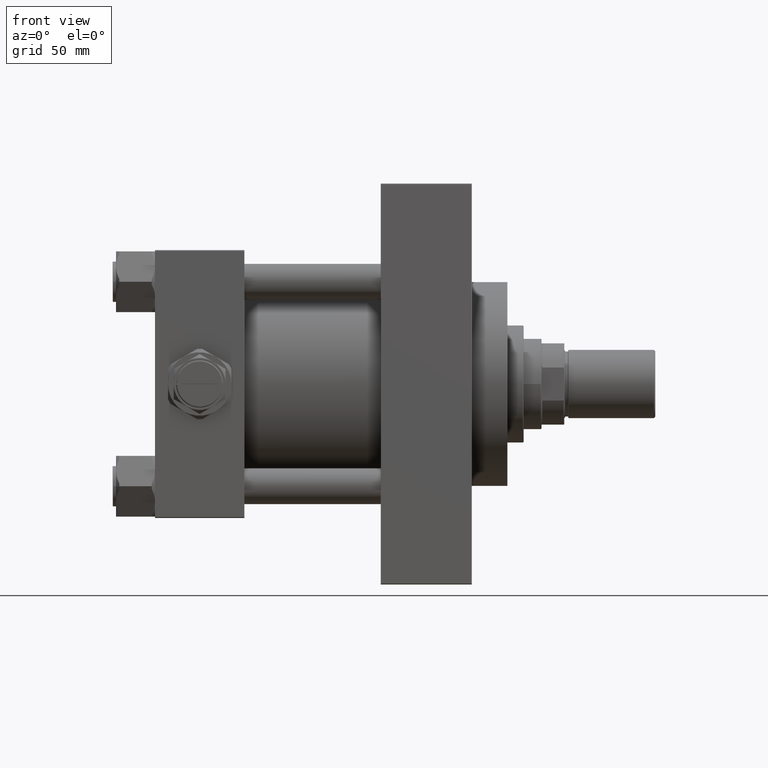
[diagram: clean part render]
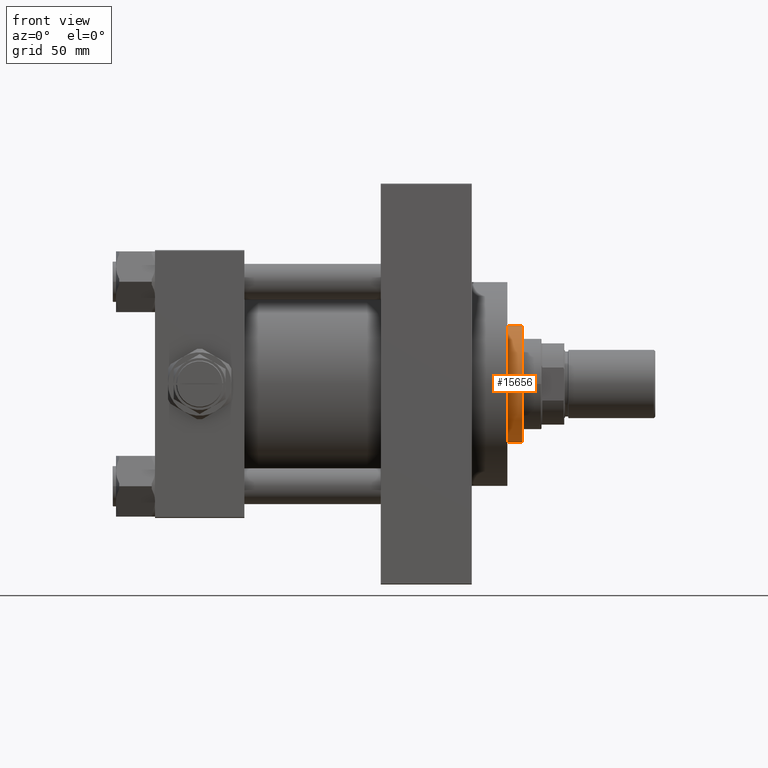
[diagram: same view with one face highlighted and labeled with its STEP entity id]
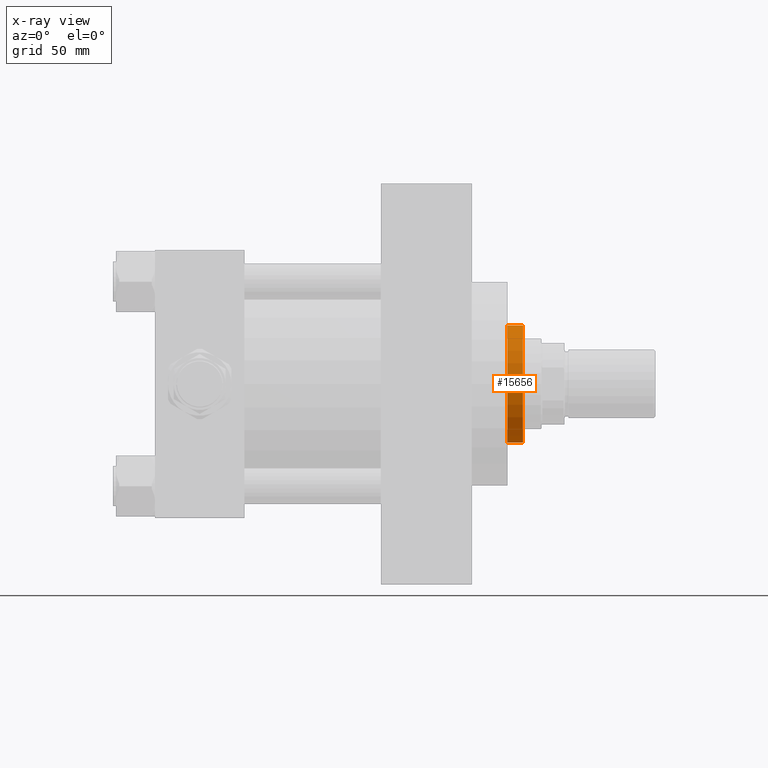
[diagram: x-ray of the same camera — body ghosted, the highlighted face saturated]
A machine part, front view. The second image highlights one B-rep face of the part: STEP entity #15656.
The next image is the same camera in x-ray: the body ghosted, the highlighted face saturated — about 0% of this face is hidden behind the body in this view.
In plain terms, the highlighted cylindrical surface (partial cylindrical patch) has radius 36 mm, axis along (-1, 0, 0).
Its self-contained STEP definition (entity closure, byte-faithful):
#505 = CIRCLE ( 'NONE', #12582, 36.00000000000000000 ) ;
#1397 = CARTESIAN_POINT ( 'NONE',  ( 0.000000000000000000, 0.000000000000000000, 52.75999999999999091 ) ) ;
#2450 = VERTEX_POINT ( 'NONE', #28336 ) ;
#5714 = VERTEX_POINT ( 'NONE', #18054 ) ;
#5860 = AXIS2_PLACEMENT_3D ( 'NONE', #26989, #38361, #15102 ) ;
#7279 = CYLINDRICAL_SURFACE ( 'NONE', #5860, 36.00000000000000000 ) ;
#9588 = DIRECTION ( 'NONE',  ( -0.000000000000000000, -0.000000000000000000, -1.000000000000000000 ) ) ;
#10615 = VECTOR ( 'NONE', #34132, 1000.000000000000000 ) ;
#12582 = AXIS2_PLACEMENT_3D ( 'NONE', #1397, #36008, #47129 ) ;
#12704 = DIRECTION ( 'NONE',  ( 0.000000000000000000, 0.000000000000000000, 1.000000000000000000 ) ) ;
#12755 = EDGE_CURVE ( 'NONE', #2450, #38044, #37678, .T. ) ;
#15102 = DIRECTION ( 'NONE',  ( -1.000000000000000000, 0.000000000000000000, 0.000000000000000000 ) ) ;
#15407 = CIRCLE ( 'NONE', #17807, 36.00000000000000000 ) ;
#15656 = ADVANCED_FACE ( 'NONE', ( #41888 ), #7279, .T. ) ;
#15780 = VECTOR ( 'NONE', #9588, 1000.000000000000000 ) ;
#17807 = AXIS2_PLACEMENT_3D ( 'NONE', #26694, #12704, #47317 ) ;
#18054 = CARTESIAN_POINT ( 'NONE',  ( -36.00000000000000000, 0.000000000000000000, 43.25999999999999801 ) ) ;
#19062 = EDGE_LOOP ( 'NONE', ( #43938, #49003, #48253, #32353 ) ) ;
#20968 = VERTEX_POINT ( 'NONE', #41719 ) ;
#24747 = LINE ( 'NONE', #40164, #15780 ) ;
#25428 = EDGE_CURVE ( 'NONE', #20968, #5714, #24747, .T. ) ;
#26694 = CARTESIAN_POINT ( 'NONE',  ( 0.000000000000000000, 0.000000000000000000, 43.25999999999999801 ) ) ;
#26989 = CARTESIAN_POINT ( 'NONE',  ( 0.000000000000000000, 0.000000000000000000, 53.26000000000000512 ) ) ;
#27010 = EDGE_CURVE ( 'NONE', #20968, #2450, #505, .T. ) ;
#28336 = CARTESIAN_POINT ( 'NONE',  ( 36.00000000000000000, 4.408728476930470856E-15, 52.75999999999999091 ) ) ;
#32353 = ORIENTED_EDGE ( 'NONE', *, *, #25428, .F. ) ;
#33887 = CARTESIAN_POINT ( 'NONE',  ( 36.00000000000000000, 4.408728476930470856E-15, 53.26000000000000512 ) ) ;
#34132 = DIRECTION ( 'NONE',  ( -0.000000000000000000, -0.000000000000000000, -1.000000000000000000 ) ) ;
#36008 = DIRECTION ( 'NONE',  ( 0.000000000000000000, 0.000000000000000000, -1.000000000000000000 ) ) ;
#37678 = LINE ( 'NONE', #33887, #10615 ) ;
#38044 = VERTEX_POINT ( 'NONE', #46074 ) ;
#38361 = DIRECTION ( 'NONE',  ( -0.000000000000000000, -0.000000000000000000, -1.000000000000000000 ) ) ;
#40164 = CARTESIAN_POINT ( 'NONE',  ( -36.00000000000000000, 0.000000000000000000, 53.26000000000000512 ) ) ;
#41719 = CARTESIAN_POINT ( 'NONE',  ( -36.00000000000000000, 0.000000000000000000, 52.75999999999999091 ) ) ;
#41803 = EDGE_CURVE ( 'NONE', #38044, #5714, #15407, .T. ) ;
#41888 = FACE_OUTER_BOUND ( 'NONE', #19062, .T. ) ;
#43938 = ORIENTED_EDGE ( 'NONE', *, *, #27010, .T. ) ;
#46074 = CARTESIAN_POINT ( 'NONE',  ( 36.00000000000000000, 4.408728476930470856E-15, 43.25999999999999801 ) ) ;
#47129 = DIRECTION ( 'NONE',  ( 1.000000000000000000, 0.000000000000000000, 0.000000000000000000 ) ) ;
#47317 = DIRECTION ( 'NONE',  ( 1.000000000000000000, 0.000000000000000000, 0.000000000000000000 ) ) ;
#48253 = ORIENTED_EDGE ( 'NONE', *, *, #41803, .T. ) ;
#49003 = ORIENTED_EDGE ( 'NONE', *, *, #12755, .T. ) ;